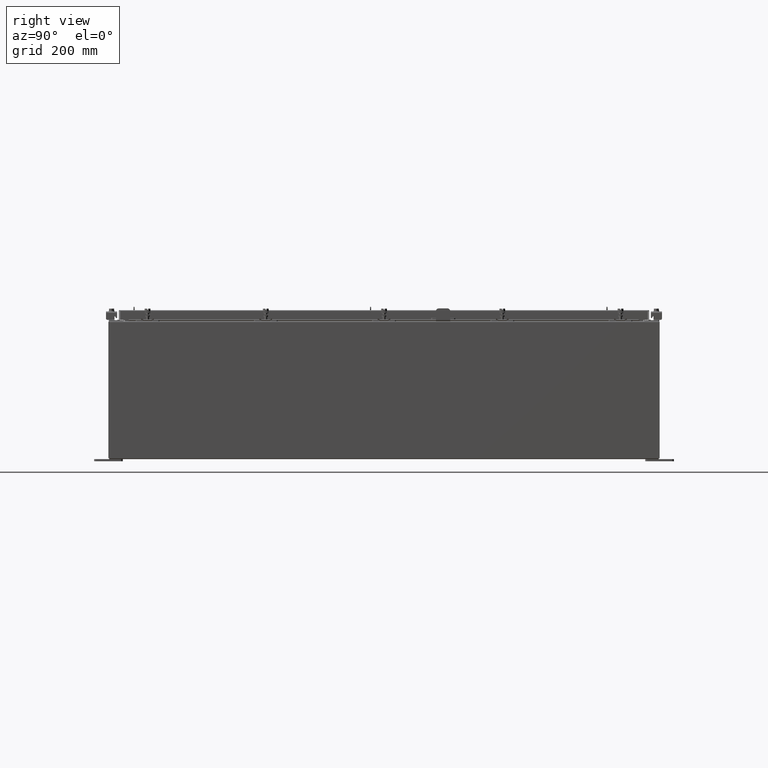
[diagram: clean part render]
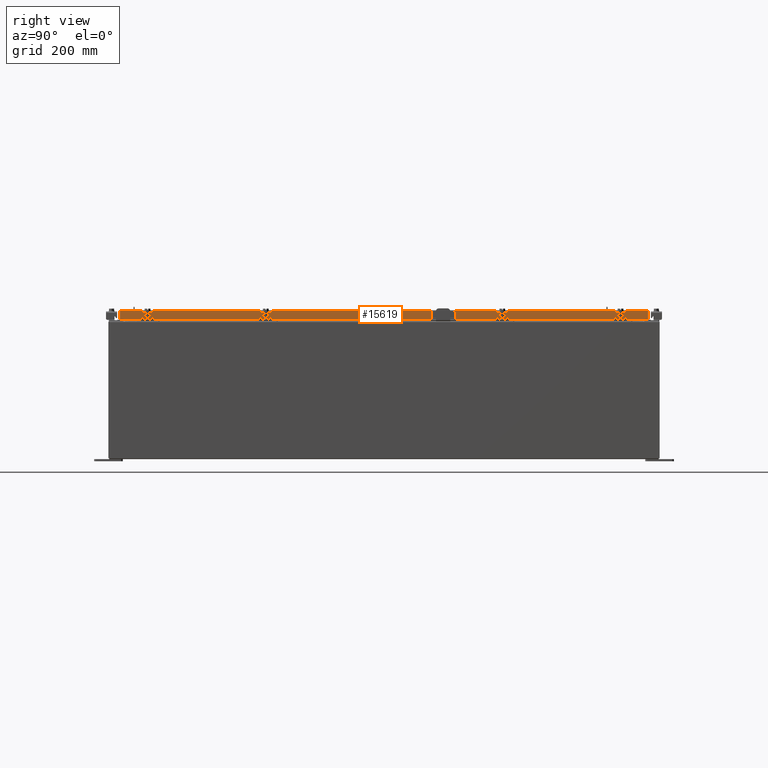
[diagram: same view with one face highlighted and labeled with its STEP entity id]
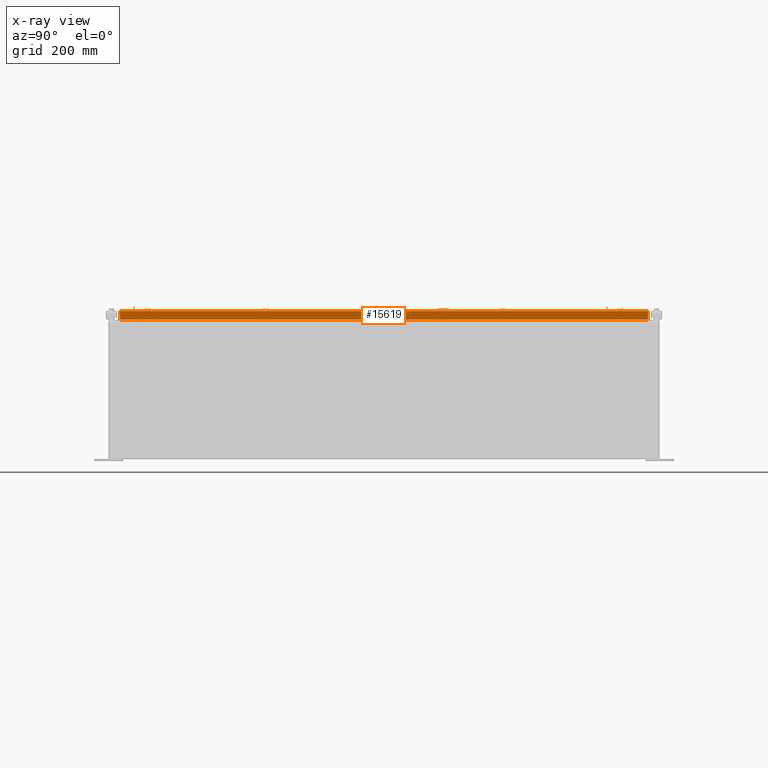
[diagram: x-ray of the same camera — body ghosted, the highlighted face saturated]
A machine part, right view. The second image highlights one B-rep face of the part: STEP entity #15619.
The next image is the same camera in x-ray: the body ghosted, the highlighted face saturated — about 0% of this face is hidden behind the body in this view.
In plain terms, the highlighted planar face has unit normal (1, 0, 0).
Its self-contained STEP definition (entity closure, byte-faithful):
#632 = FACE_OUTER_BOUND ( 'NONE', #18770, .T. ) ;
#790 = ORIENTED_EDGE ( 'NONE', *, *, #1111, .F. ) ;
#1013 = VECTOR ( 'NONE', #4501, 39.37007874015748100 ) ;
#1111 = EDGE_CURVE ( 'NONE', #8591, #21806, #11538, .T. ) ;
#3067 = DIRECTION ( 'NONE',  ( 1.000000000000000000, 0.0000000000000000000, 2.818880942772360100E-015 ) ) ;
#3177 = CARTESIAN_POINT ( 'NONE',  ( 17.07800000000000300, 4.149702416982616300E-018, -0.08770000000000115200 ) ) ;
#3431 = CARTESIAN_POINT ( 'NONE',  ( 17.07799999999999200, -22.25515786437626200, -0.8500000000000010900 ) ) ;
#3625 = EDGE_CURVE ( 'NONE', #14045, #12652, #21643, .T. ) ;
#4117 = DIRECTION ( 'NONE',  ( 0.0000000000000000000, -1.000000000000000000, 0.0000000000000000000 ) ) ;
#4501 = DIRECTION ( 'NONE',  ( -2.818880942772360100E-015, -6.982962677686265900E-015, 1.000000000000000000 ) ) ;
#4962 = EDGE_CURVE ( 'NONE', #14045, #8628, #19524, .T. ) ;
#4987 = EDGE_CURVE ( 'NONE', #8628, #21806, #24490, .T. ) ;
#5308 = DIRECTION ( 'NONE',  ( 1.333810383284160400E-031, -1.000000000000000000, -4.731701729738051400E-017 ) ) ;
#5776 = CARTESIAN_POINT ( 'NONE',  ( 17.07799999999999200, 22.25515786437627200, -0.8500000000000010900 ) ) ;
#6234 = VECTOR ( 'NONE', #11518, 39.37007874015748100 ) ;
#6928 = AXIS2_PLACEMENT_3D ( 'NONE', #15676, #3067, #17793 ) ;
#8367 = VECTOR ( 'NONE', #19902, 39.37007874015748100 ) ;
#8591 = VERTEX_POINT ( 'NONE', #12014 ) ;
#8628 = VERTEX_POINT ( 'NONE', #14135 ) ;
#9309 = PLANE ( 'NONE',  #6928 ) ;
#11050 = LINE ( 'NONE', #18840, #26550 ) ;
#11518 = DIRECTION ( 'NONE',  ( 0.0000000000000000000, -1.000000000000000000, 0.0000000000000000000 ) ) ;
#11538 = LINE ( 'NONE', #13086, #1013 ) ;
#11951 = ORIENTED_EDGE ( 'NONE', *, *, #4987, .T. ) ;
#12014 = CARTESIAN_POINT ( 'NONE',  ( 17.07800000000000300, -23.00515786437626900, -0.8499999999999996400 ) ) ;
#12652 = VERTEX_POINT ( 'NONE', #5776 ) ;
#13086 = CARTESIAN_POINT ( 'NONE',  ( 17.07800000000000300, -23.00515786437627200, -0.07469999999999978000 ) ) ;
#13970 = VECTOR ( 'NONE', #5308, 39.37007874015748100 ) ;
#14045 = VERTEX_POINT ( 'NONE', #24158 ) ;
#14135 = CARTESIAN_POINT ( 'NONE',  ( 17.07800000000000300, 23.00515786437626200, -0.08770000000000115200 ) ) ;
#15619 = ADVANCED_FACE ( 'NONE', ( #632 ), #9309, .T. ) ;
#15676 = CARTESIAN_POINT ( 'NONE',  ( 17.07800000000000300, 0.0000000000000000000, 4.840166239667795300E-014 ) ) ;
#16536 = ORIENTED_EDGE ( 'NONE', *, *, #19596, .F. ) ;
#17793 = DIRECTION ( 'NONE',  ( 2.818880942772360100E-015, 0.0000000000000000000, -1.000000000000000000 ) ) ;
#17819 = CARTESIAN_POINT ( 'NONE',  ( 17.07800000000000300, 23.00515786437626900, 2.090458211578981100E-013 ) ) ;
#18071 = CARTESIAN_POINT ( 'NONE',  ( 17.07800000000000300, -23.09400000000000100, -0.8499999999999996400 ) ) ;
#18581 = EDGE_CURVE ( 'NONE', #22070, #8591, #22983, .T. ) ;
#18770 = EDGE_LOOP ( 'NONE', ( #790, #24520, #16536, #26472, #25690, #11951 ) ) ;
#18840 = CARTESIAN_POINT ( 'NONE',  ( 17.07799999999999200, 22.25515786437627200, -0.8500000000000010900 ) ) ;
#19163 = CARTESIAN_POINT ( 'NONE',  ( 17.07800000000000300, -23.00515786437627200, -0.08770000000000224800 ) ) ;
#19524 = LINE ( 'NONE', #17819, #8367 ) ;
#19596 = EDGE_CURVE ( 'NONE', #12652, #22070, #11050, .T. ) ;
#19633 = VECTOR ( 'NONE', #20171, 39.37007874015748100 ) ;
#19902 = DIRECTION ( 'NONE',  ( -2.818880942772360100E-015, -6.982962677686265900E-015, 1.000000000000000000 ) ) ;
#20171 = DIRECTION ( 'NONE',  ( 0.0000000000000000000, -1.000000000000000000, 0.0000000000000000000 ) ) ;
#21643 = LINE ( 'NONE', #18071, #19633 ) ;
#21806 = VERTEX_POINT ( 'NONE', #19163 ) ;
#22070 = VERTEX_POINT ( 'NONE', #3431 ) ;
#22983 = LINE ( 'NONE', #26146, #6234 ) ;
#24158 = CARTESIAN_POINT ( 'NONE',  ( 17.07800000000000300, 23.00515786437627200, -0.8499999999999996400 ) ) ;
#24490 = LINE ( 'NONE', #3177, #13970 ) ;
#24520 = ORIENTED_EDGE ( 'NONE', *, *, #18581, .F. ) ;
#25690 = ORIENTED_EDGE ( 'NONE', *, *, #4962, .T. ) ;
#26146 = CARTESIAN_POINT ( 'NONE',  ( 17.07800000000000300, -23.09400000000000100, -0.8499999999999996400 ) ) ;
#26472 = ORIENTED_EDGE ( 'NONE', *, *, #3625, .F. ) ;
#26550 = VECTOR ( 'NONE', #4117, 39.37007874015748100 ) ;